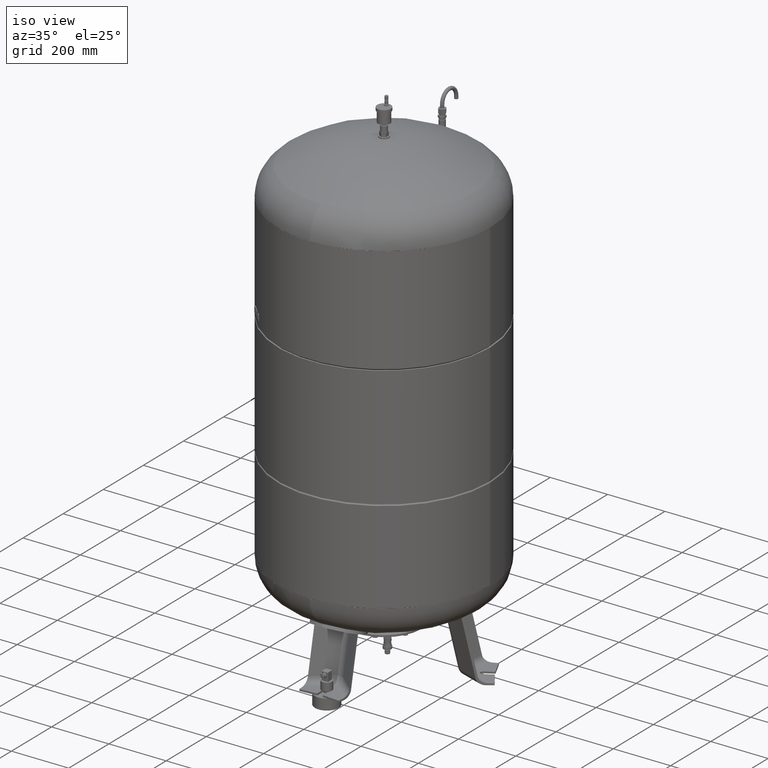
[diagram: clean part render]
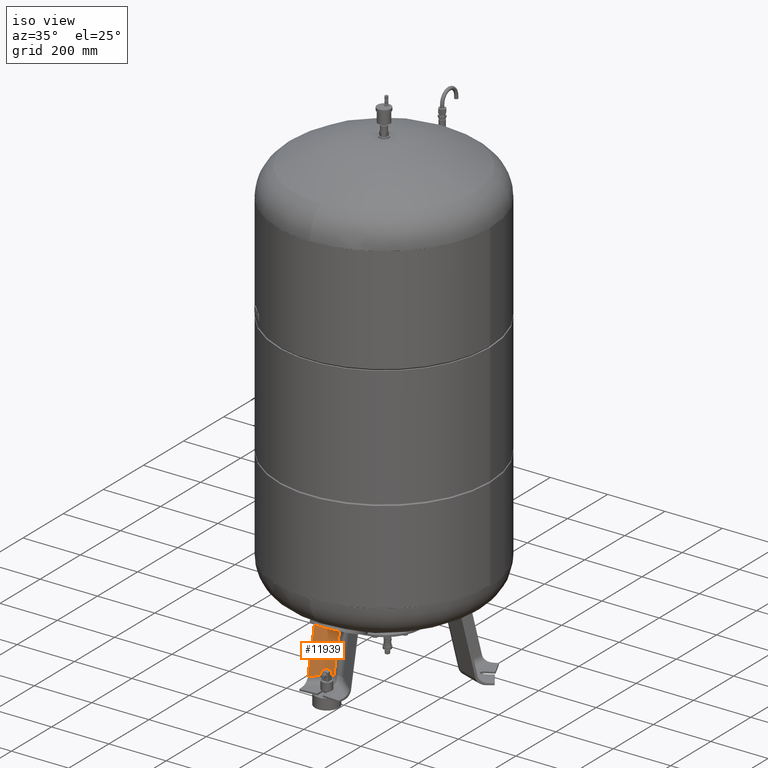
[diagram: same view with one face highlighted and labeled with its STEP entity id]
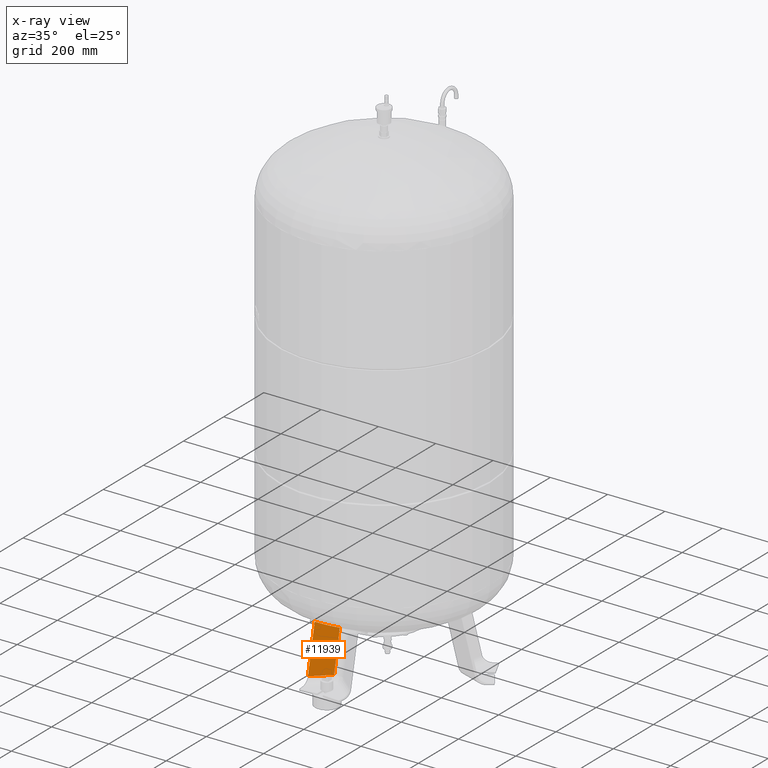
[diagram: x-ray of the same camera — body ghosted, the highlighted face saturated]
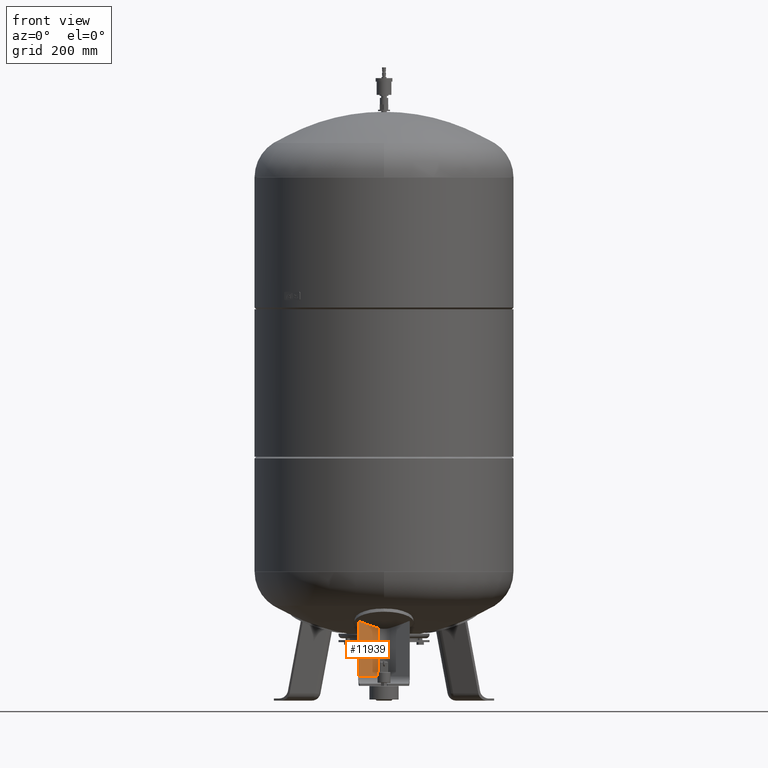
[diagram: same view with one face highlighted and labeled with its STEP entity id]
A machine part, iso view. The second image highlights one B-rep face of the part: STEP entity #11939.
The next image is the same camera in x-ray: the body ghosted, the highlighted face saturated — about 0% of this face is hidden behind the body in this view.
A second angle (front view) of the same face is appended — the face is thin or edge-on in the first view.
In plain terms, the highlighted planar face has unit normal (0.6455, -0.7471, 0.1588).
Its self-contained STEP definition (entity closure, byte-faithful):
#11327=CARTESIAN_POINT('',(-16.136450826554519,-226.124712592942870,69.029948423057306));
#11328=VERTEX_POINT('',#11327);
#11786=CARTESIAN_POINT('',(-72.837866169855019,-275.111649658243320,69.029948423057306));
#11787=VERTEX_POINT('',#11786);
#11788=CARTESIAN_POINT('',(-16.136450826554519,-226.124712592942870,69.029948423057306));
#11789=DIRECTION('',(-0.756707249513242,-0.653753882232529,0.0));
#11790=VECTOR('',#11789,74.931772333057623);
#11791=LINE('',#11788,#11790);
#11792=EDGE_CURVE('',#11328,#11787,#11791,.T.);
#11886=CARTESIAN_POINT('',(-72.837866169855005,-241.307868975085170,228.064232839248060));
#11887=VERTEX_POINT('',#11886);
#11888=CARTESIAN_POINT('',(-72.837866169855019,-275.111649658243320,69.029948423057306));
#11889=DIRECTION('',(8.740451E-017,0.207911690817761,0.978147600733805));
#11890=VECTOR('',#11889,162.587204933982780);
#11891=LINE('',#11888,#11890);
#11892=EDGE_CURVE('',#11787,#11887,#11891,.T.);
#11915=CARTESIAN_POINT('',(5.588417E-015,-241.254046899650970,-67.735293817669515));
#11916=DIRECTION('',(0.645458033062181,-0.747104967402683,0.158802063077708));
#11917=DIRECTION('',(1.504084E-016,0.207911690817760,0.978147600733806));
#11918=AXIS2_PLACEMENT_3D('',#11915,#11916,#11917);
#11919=PLANE('',#11918);
#11920=CARTESIAN_POINT('',(-16.136450826554487,-196.761728828090550,207.171925947308010));
#11921=VERTEX_POINT('',#11920);
#11922=CARTESIAN_POINT('',(-16.136450826554487,-196.761728828090550,207.171925947308010));
#11923=DIRECTION('',(-2.264026E-016,-0.207911690817760,-0.978147600733805));
#11924=VECTOR('',#11923,141.228151477974000);
#11925=LINE('',#11922,#11924);
#11926=EDGE_CURVE('',#11921,#11328,#11925,.T.);
#11927=ORIENTED_EDGE('',*,*,#11926,.F.);
#11928=CARTESIAN_POINT('',(22.787907488435014,-41.761826466872009,778.179351716230940));
#11929=DIRECTION('',(-0.645458033062181,0.747104967402683,-0.158802063077708));
#11930=DIRECTION('',(0.0,0.207911690817760,0.978147600733806));
#11931=AXIS2_PLACEMENT_3D('',#11928,#11929,#11930);
#11932=CIRCLE('',#11931,592.949876199896950);
#11933=EDGE_CURVE('',#11921,#11887,#11932,.T.);
#11934=ORIENTED_EDGE('',*,*,#11933,.T.);
#11935=ORIENTED_EDGE('',*,*,#11892,.F.);
#11936=ORIENTED_EDGE('',*,*,#11792,.F.);
#11937=EDGE_LOOP('',(#11927,#11934,#11935,#11936));
#11938=FACE_OUTER_BOUND('',#11937,.T.);
#11939=ADVANCED_FACE('',(#11938),#11919,.T.);